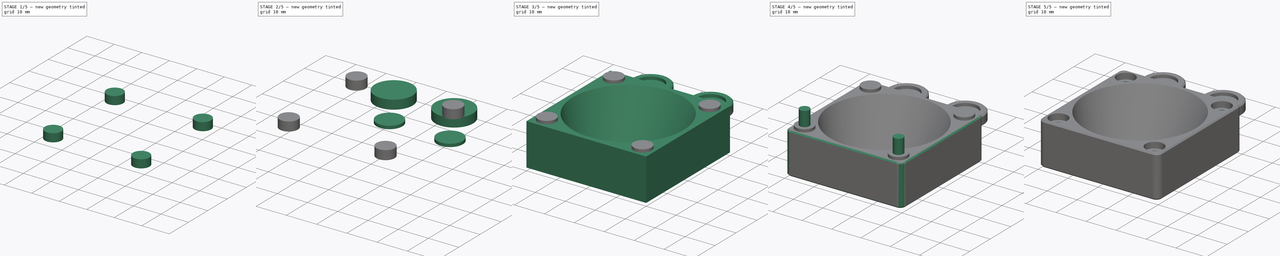
[diagram: build sequence overview — one tinted view per stage of 5, left to right]
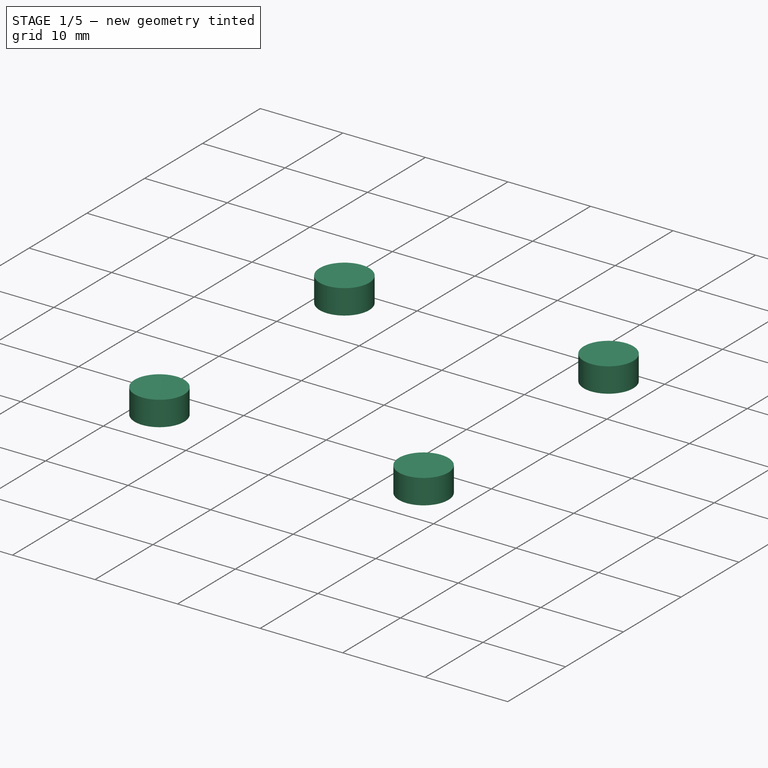
[diagram: stage 1 of 5 — iso view after this stage's code; geometry added in this stage tinted green]
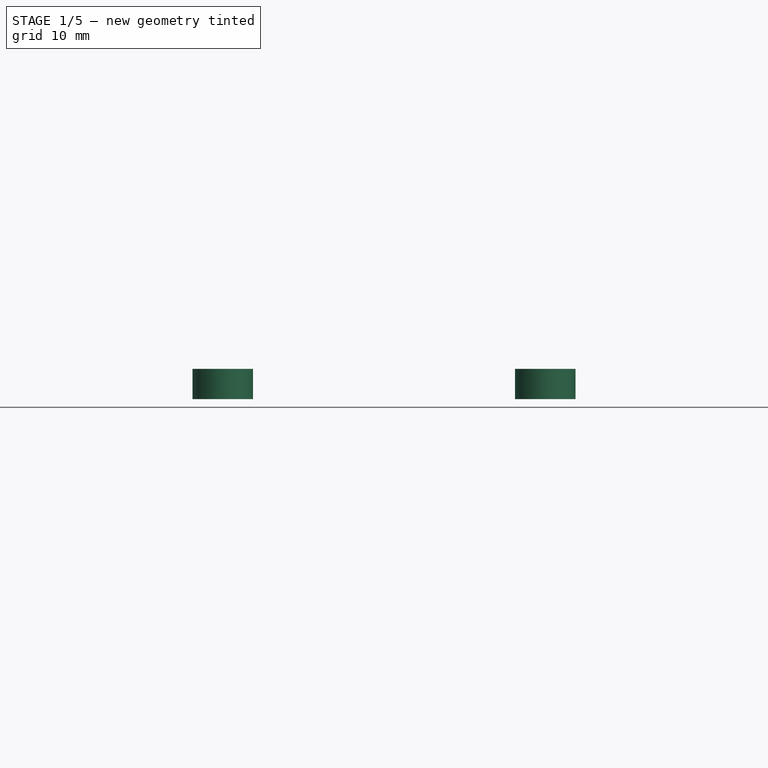
[diagram: stage 1 of 5 — front view after this stage's code; geometry added in this stage tinted green]
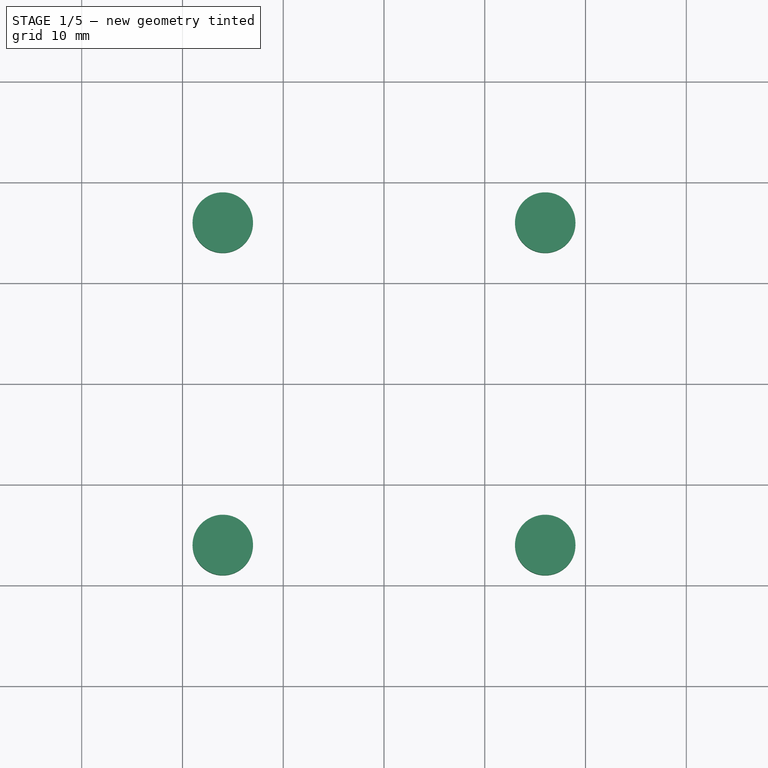
[diagram: stage 1 of 5 — top view after this stage's code; geometry added in this stage tinted green]
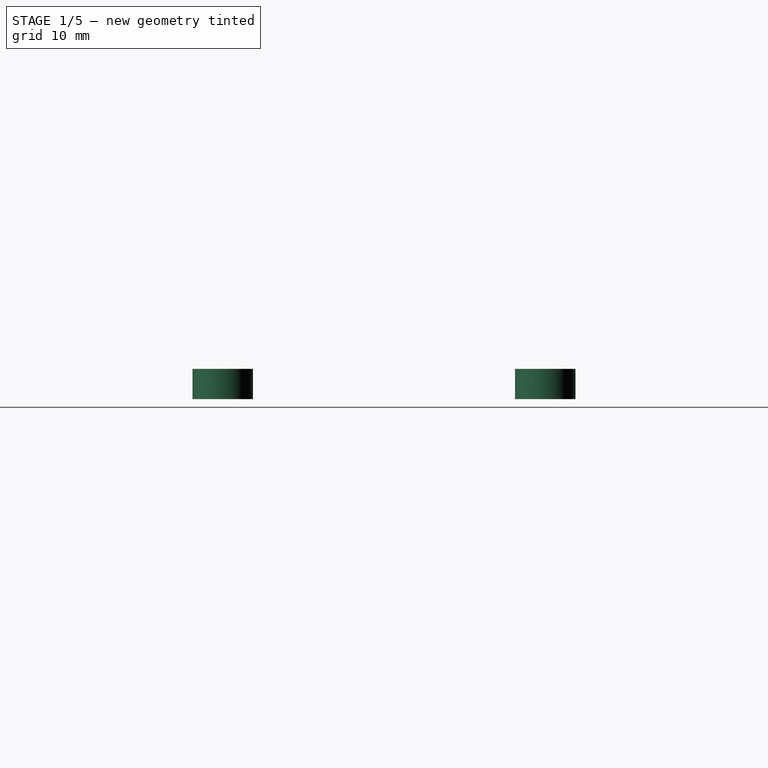
[diagram: stage 1 of 5 — right view after this stage's code; geometry added in this stage tinted green]
FCSTD DOCUMENT  (FreeCAD 0.19R24291 (Git))
Label: dummy-fan
License: Other
LicenseURL: GPL3
objects: Part::Cylinder×12, Part::MultiFuse×5, Part::Cut×4, Part::Feature×2, Sketcher::SketchObject×2, Part::Chamfer×2, Part::Box×1, PartDesign::AdditiveLoft×1, PartDesign::Body×1, Part::Fillet×1
note: 32 computed .brp shape members not serialized (recipe doc carries the construction recipe); baked Part::Feature solids carry a one-line shape summary decoded from their .brp

FEATURE [Part::Cylinder] Cylinder008
  Angle = 360
  AttacherType = Attacher::AttachEngine3D
  Height = 3
  Placement = pos=(-16,16,0) rot=(0,0,1;0rad)
  Radius = 3
FEATURE [Part::Cylinder] Cylinder009
  Angle = 360
  AttacherType = Attacher::AttachEngine3D
  Height = 3
  Placement = pos=(-16,-16,0) rot=(0,0,1;0rad)
  Radius = 3
FEATURE [Part::Cylinder] Cylinder010
  Angle = 360
  AttacherType = Attacher::AttachEngine3D
  Height = 3
  Placement = pos=(16,16,0) rot=(0,0,1;0rad)
  Radius = 3
FEATURE [Part::Cylinder] Cylinder011
  Angle = 360
  AttacherType = Attacher::AttachEngine3D
  Height = 3
  Placement = pos=(16,-16,0) rot=(0,0,1;0rad)
  Radius = 3
FEATURE [Part::MultiFuse] Fusion036012039010005
  Placement = pos=(0,0,12) rot=(0,0,1;0rad)
  Shapes = -> [Cylinder011,Cylinder008,Cylinder009,Cylinder010]
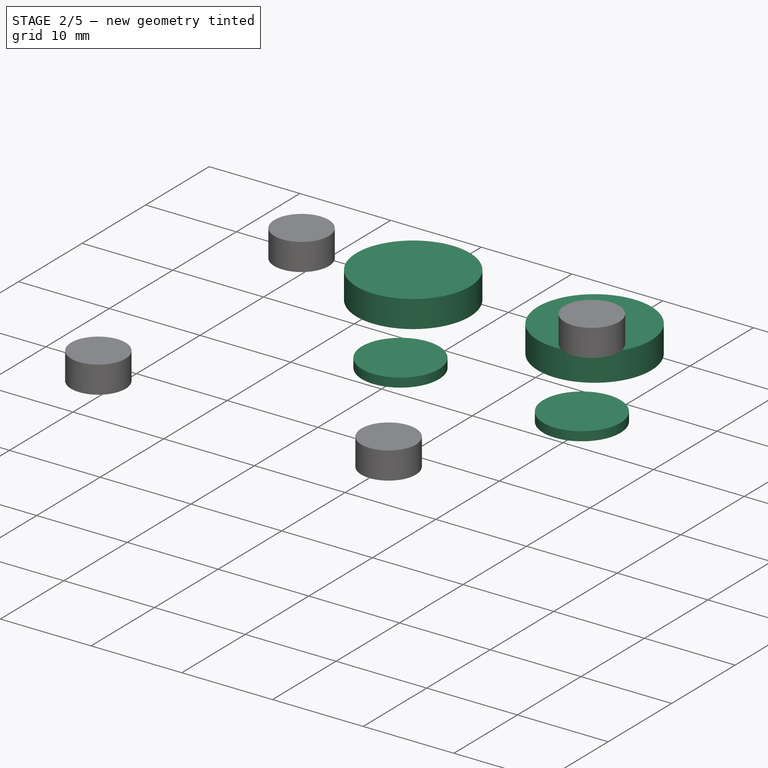
[diagram: stage 2 of 5 — iso view after this stage's code; geometry added in this stage tinted green]
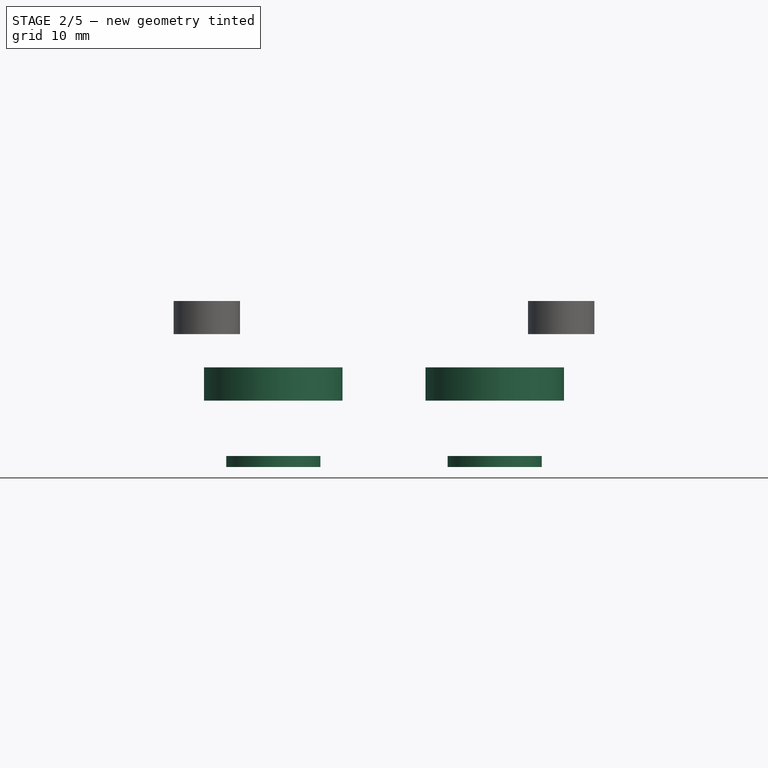
[diagram: stage 2 of 5 — front view after this stage's code; geometry added in this stage tinted green]
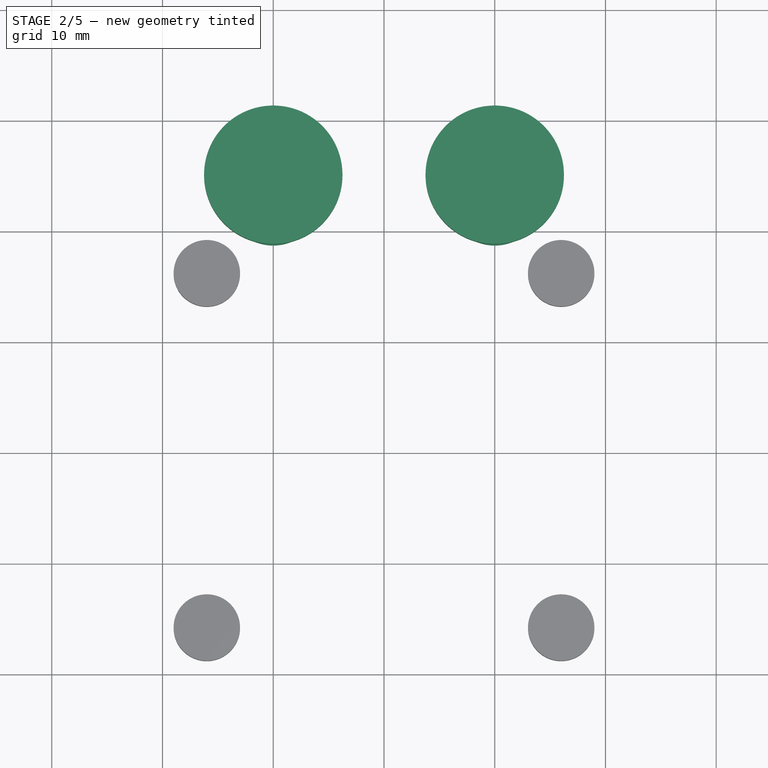
[diagram: stage 2 of 5 — top view after this stage's code; geometry added in this stage tinted green]
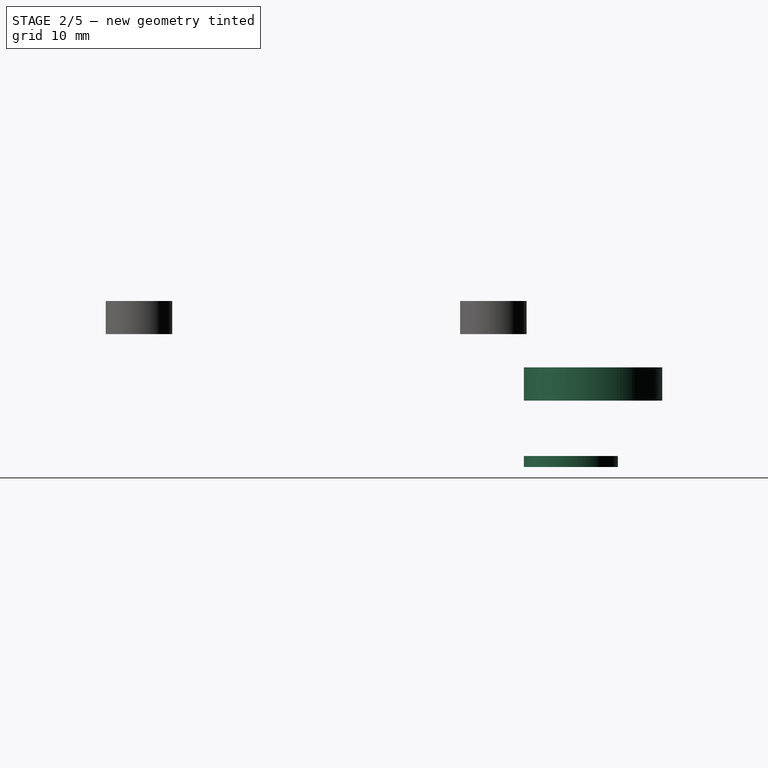
[diagram: stage 2 of 5 — right view after this stage's code; geometry added in this stage tinted green]
FEATURE [Part::Feature] Fusion036012039008  label="_2510-fan-pref"
  Placement = pos=(0.02,-4,26) rot=(1,0,0;3.14159rad)
  shape: bbox 25.76 x 25.8 x 10.5 mm, 132 faces, 2 solids (baked)
FEATURE [Sketcher::SketchObject] Sketch
  FullyConstrained = true
  MapMode = 5
  Support = -> [XY_Plane]
  sketch-geometry (1):
    g0: Circle CenterX=0 CenterY=-3.75 CenterZ=0 NormalX=0 NormalY=0 NormalZ=1 AngleXU=0 Radius=14.25
  constraints (3):
    c: DistanceY(g-1,g0) = -3.75
    c: DistanceX(g0,g-1) = 0
    c: Radius(g0) = 14.25
FEATURE [Sketcher::SketchObject] Sketch001
  AttachmentOffset = pos=(0,0,14) rot=(0,0,1;0rad)
  FullyConstrained = true
  MapMode = 5
  Placement = pos=(0,0,14) rot=(0,0,1;0rad)
  Support = -> [XY_Plane]
  sketch-geometry (1):
    g0: Circle CenterX=0 CenterY=0 CenterZ=0 NormalX=0 NormalY=0 NormalZ=1 AngleXU=0 Radius=18.5
  constraints (3):
    c: DistanceX(g0,g-1) = 0
    c: DistanceY(g-1,g0) = 0
    c: Radius(g0) = 18.5
FEATURE [Part::Cylinder] Cylinder004
  Angle = 360
  AttacherType = Attacher::AttachEngine3D
  Height = 3
  Placement = pos=(10,25,0) rot=(0,0,1;0rad)
  Radius = 6.25
FEATURE [Part::Cylinder] Cylinder006
  Angle = 360
  AttacherType = Attacher::AttachEngine3D
  Height = 1
  Placement = pos=(-10,23,0) rot=(0,0,1;0rad)
  Radius = 4.25
FEATURE [Part::Cylinder] Cylinder007
  Angle = 360
  AttacherType = Attacher::AttachEngine3D
  Height = 1
  Placement = pos=(10,23,0) rot=(0,0,1;0rad)
  Radius = 4.25
FEATURE [Part::Feature] Cut002001  label="short-duct"
  shape: bbox 47.45 x 54.06 x 9 mm, 37 faces (baked)
FEATURE [Part::Cylinder] Cylinder005
  Angle = 360
  AttacherType = Attacher::AttachEngine3D
  Height = 3
  Placement = pos=(-10,25,0) rot=(0,0,1;0rad)
  Radius = 6.25
FEATURE [Part::MultiFuse] Fusion036012039010003
  Placement = pos=(0,0,6) rot=(0,0,1;0rad)
  Shapes = -> [Cylinder004,Cylinder005]
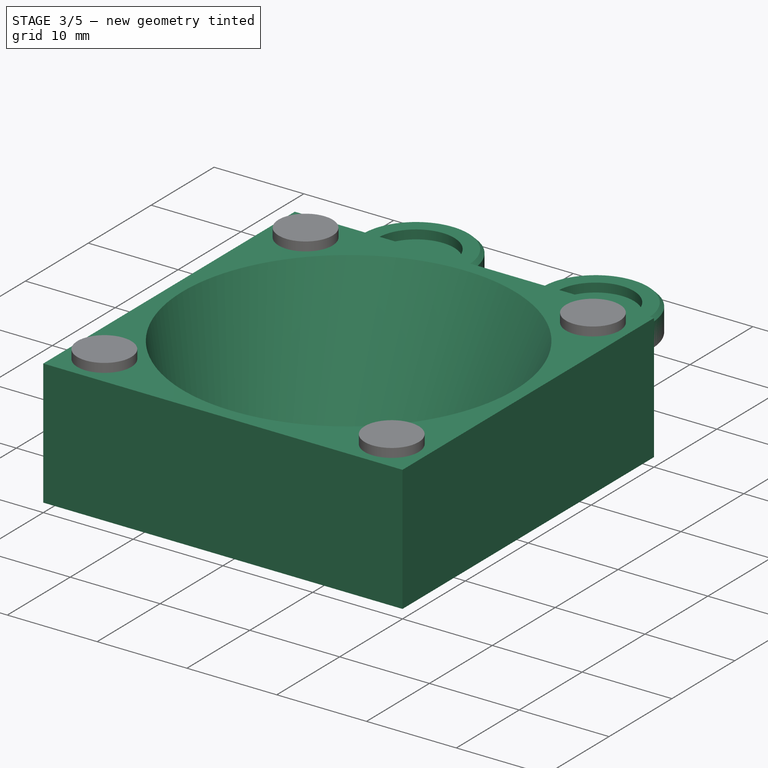
[diagram: stage 3 of 5 — iso view after this stage's code; geometry added in this stage tinted green]
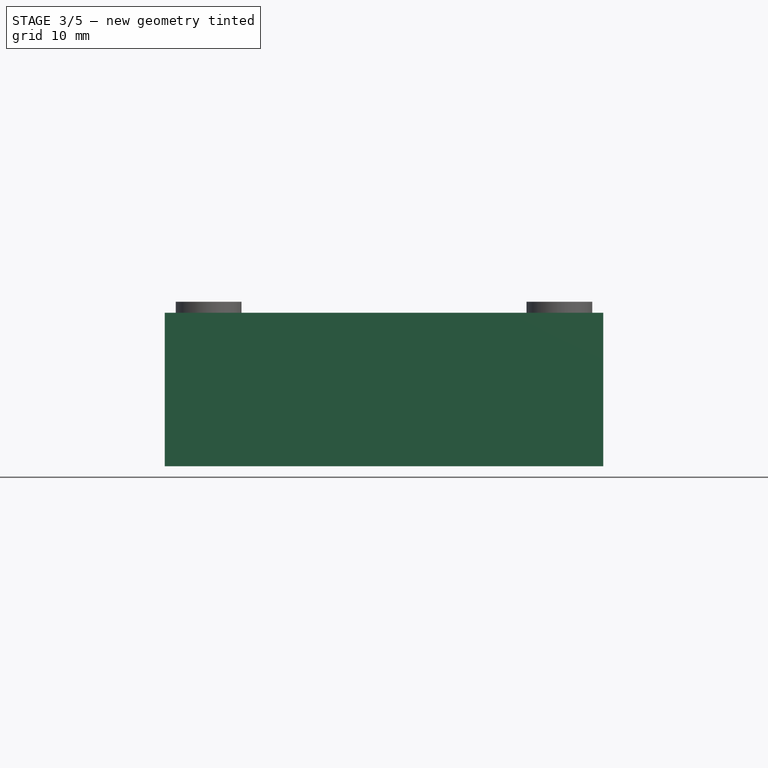
[diagram: stage 3 of 5 — front view after this stage's code; geometry added in this stage tinted green]
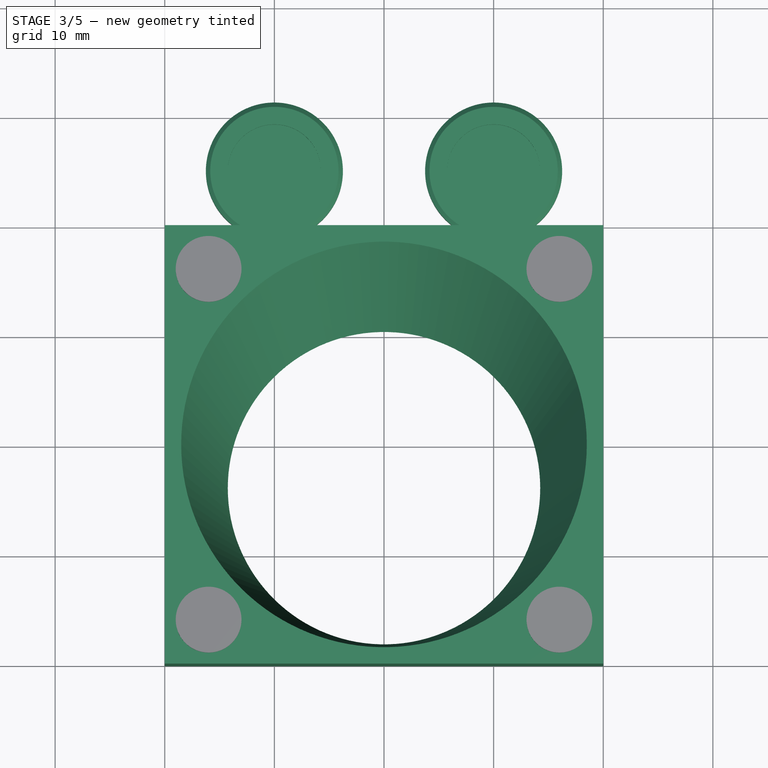
[diagram: stage 3 of 5 — top view after this stage's code; geometry added in this stage tinted green]
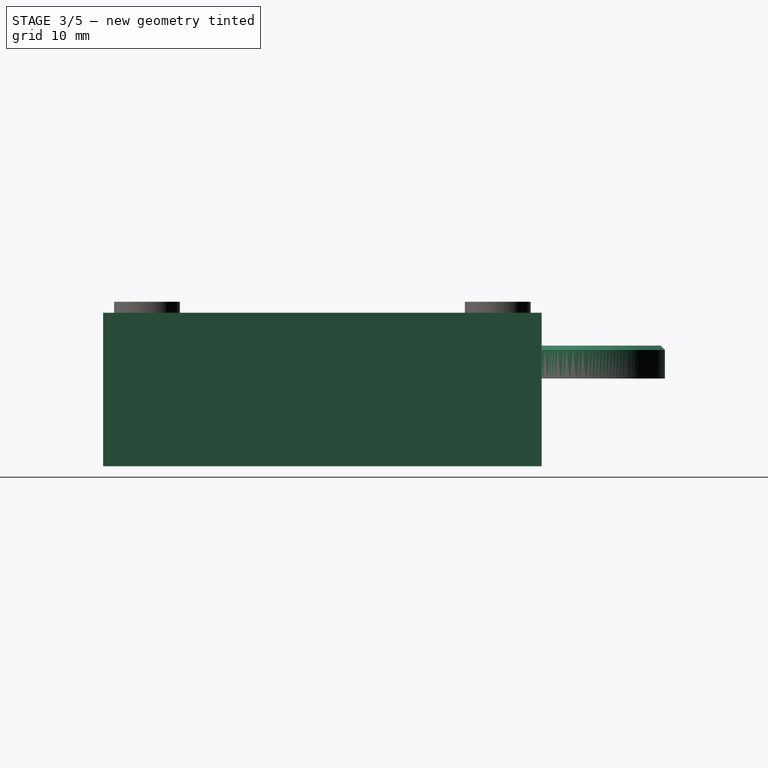
[diagram: stage 3 of 5 — right view after this stage's code; geometry added in this stage tinted green]
FEATURE [Part::Box] Box  label="Cube"
  AttacherType = Attacher::AttachEngine3D
  Height = 14
  Length = 40
  Placement = pos=(-20,-20,0) rot=(0,0,1;0rad)
  Width = 40
FEATURE [Part::MultiFuse] Fusion036012039010002
  Placement = pos=(0,2,8) rot=(0,0,1;0rad)
  Shapes = -> [Cylinder006,Cylinder007]
FEATURE [Part::Cut] Cut002003
  Base = -> Fusion036012039010003
  Placement = pos=(0,0,2) rot=(0,0,1;0rad)
  Tool = -> Fusion036012039010002
FEATURE [PartDesign::AdditiveLoft] AdditiveLoft
  Closed = false
  Profile = -> Sketch
  Ruled = false
  Sections = -> [Sketch001]
FEATURE [PartDesign::Body] Body
  Group = -> [Sketch,Sketch001,AdditiveLoft]
  Origin = -> Origin
  Tip = -> AdditiveLoft
FEATURE [Part::Cut] Cut
  Base = -> Box
  Tool = -> Body
FEATURE [Part::Chamfer] Chamfer001
  Base = -> Cut002003
  Edges = 2 edges r=0.4: [Edge1,Edge7]
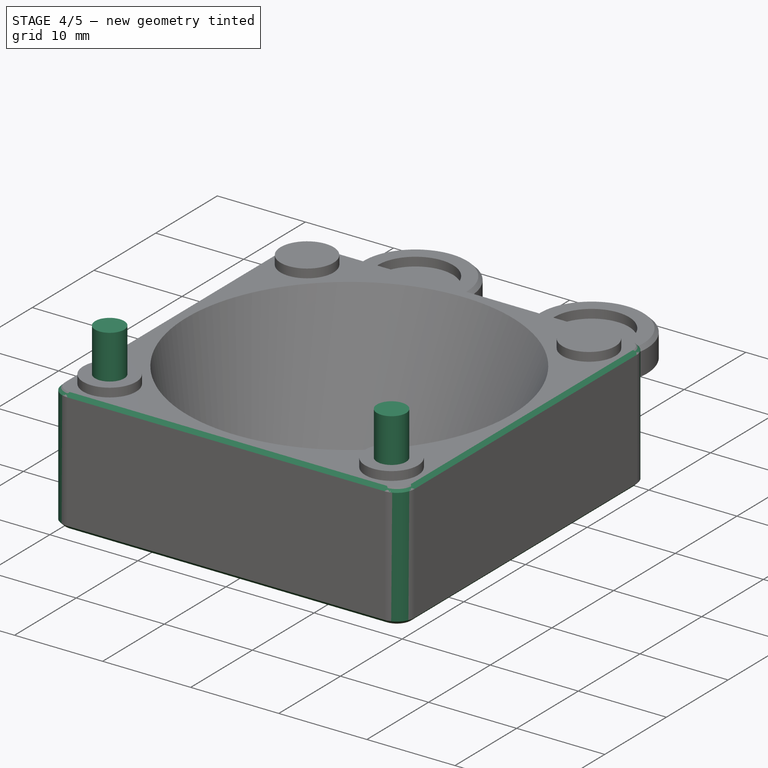
[diagram: stage 4 of 5 — iso view after this stage's code; geometry added in this stage tinted green]
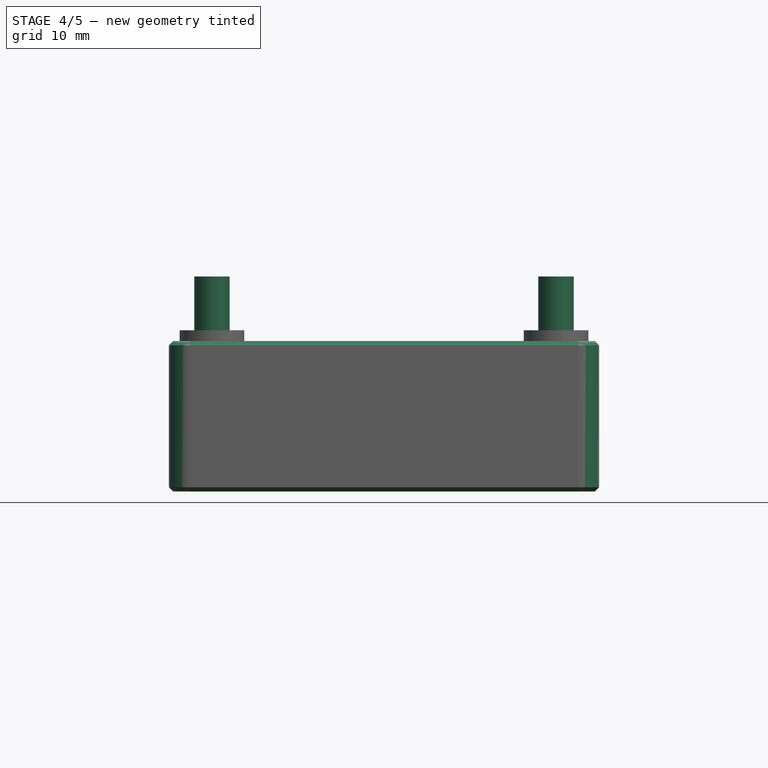
[diagram: stage 4 of 5 — front view after this stage's code; geometry added in this stage tinted green]
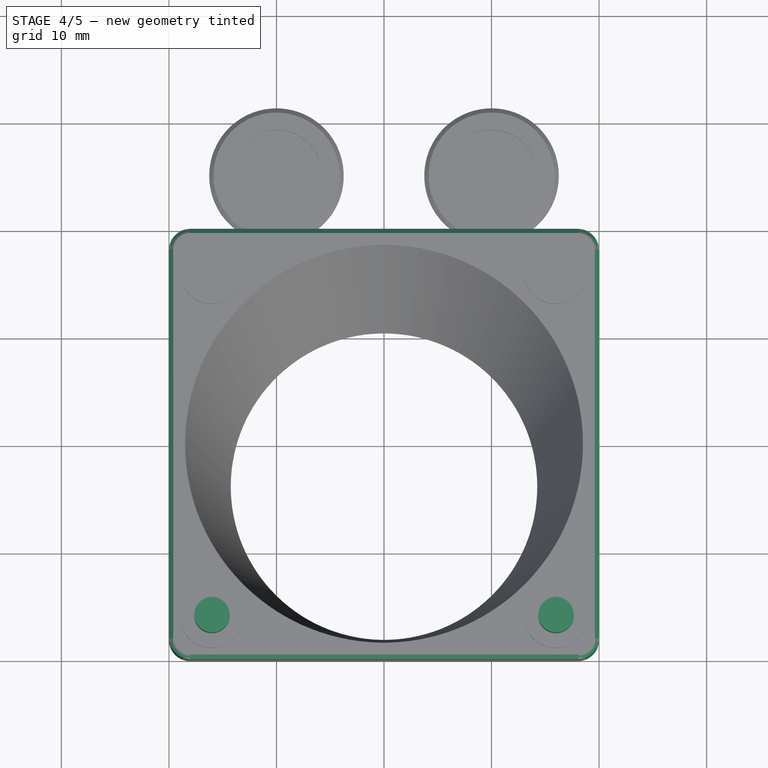
[diagram: stage 4 of 5 — top view after this stage's code; geometry added in this stage tinted green]
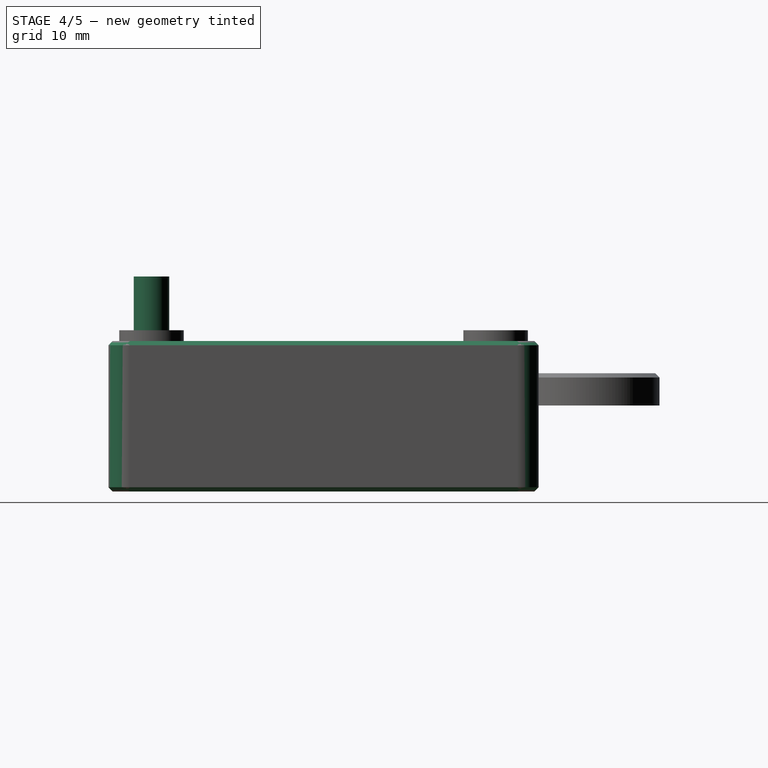
[diagram: stage 4 of 5 — right view after this stage's code; geometry added in this stage tinted green]
FEATURE [Part::Cylinder] Cylinder002
  Angle = 360
  AttacherType = Attacher::AttachEngine3D
  Height = 20
  Placement = pos=(16,-16,0) rot=(0,0,1;0rad)
  Radius = 1.65
FEATURE [Part::Cylinder] Cylinder003
  Angle = 360
  AttacherType = Attacher::AttachEngine3D
  Height = 20
  Placement = pos=(-16,-16,0) rot=(0,0,1;0rad)
  Radius = 1.65
FEATURE [Part::Fillet] Fillet
  Base = -> Cut
  Edges = 4 edges r=2: [Edge1,Edge3,Edge6,Edge12]
FEATURE [Part::Chamfer] Chamfer
  Base = -> Fillet
  Edges = 16 edges r=0.4: [Edge1,Edge3,Edge5,Edge6,Edge7,Edge8,Edge9,Edge10,Edge11,Edge13,Edge15,Edge17,Edge18,Edge19,Edge20,Edge21]
FEATURE [Part::MultiFuse] Fusion036012039010004
  Shapes = -> [Chamfer001,Chamfer]
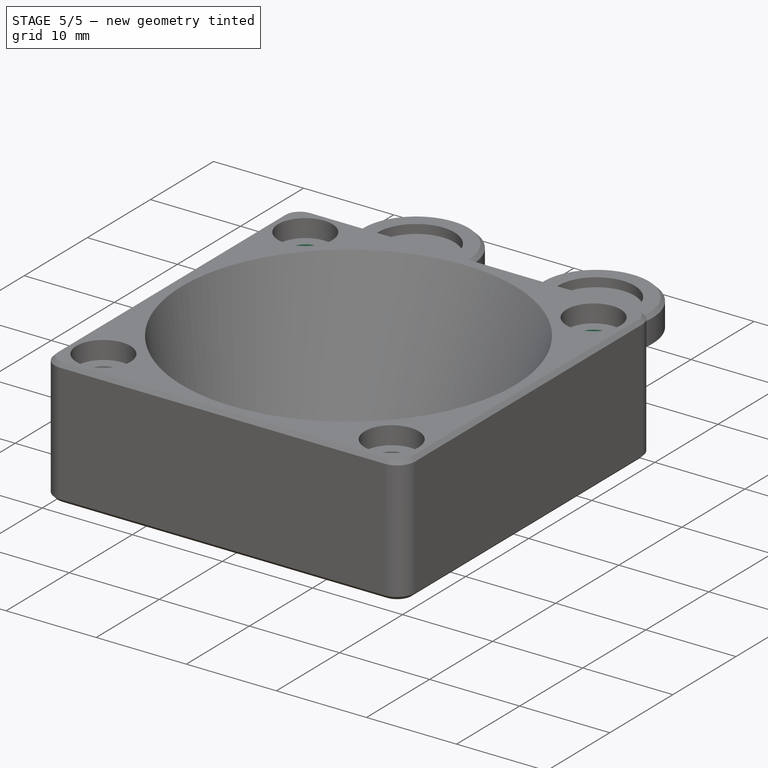
[diagram: stage 5 of 5 — iso view after this stage's code; geometry added in this stage tinted green]
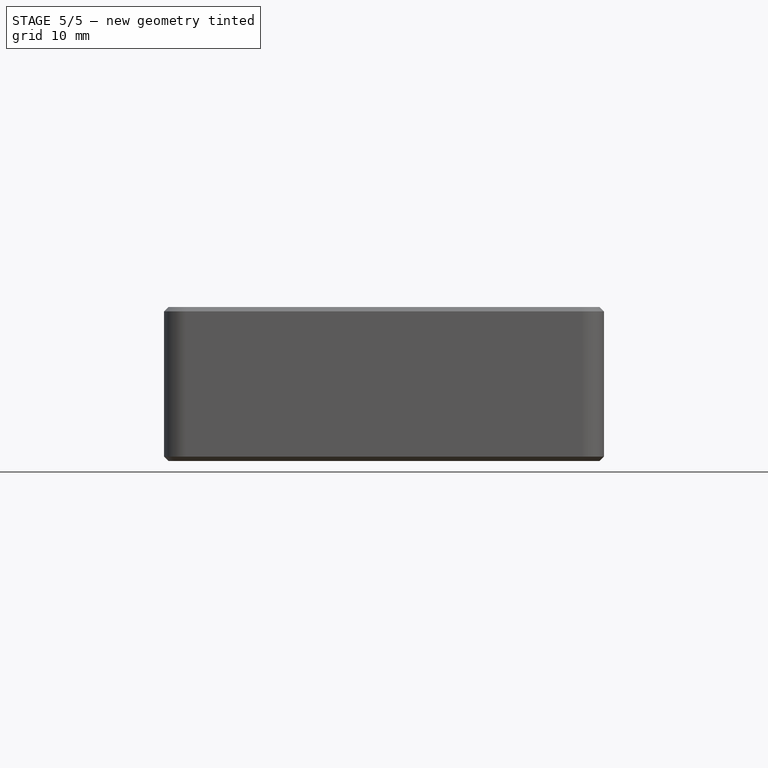
[diagram: stage 5 of 5 — front view after this stage's code; geometry added in this stage tinted green]
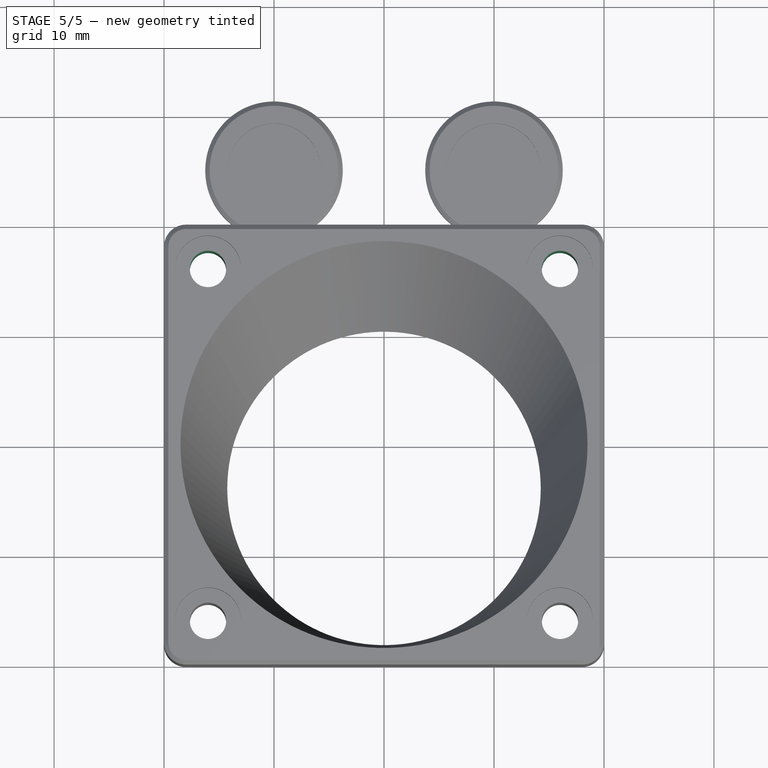
[diagram: stage 5 of 5 — top view after this stage's code; geometry added in this stage tinted green]
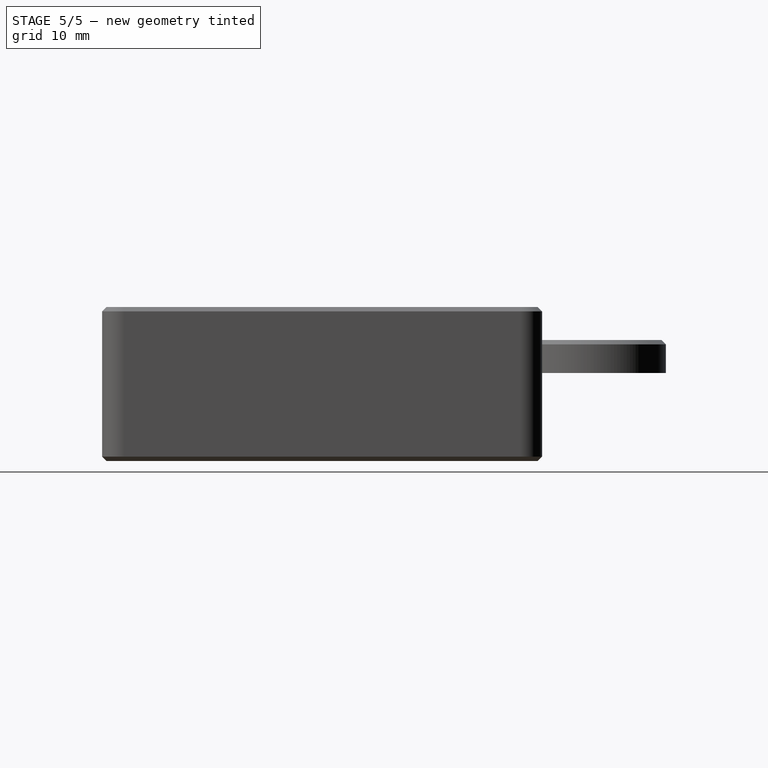
[diagram: stage 5 of 5 — right view after this stage's code; geometry added in this stage tinted green]
FEATURE [Part::Cylinder] Cylinder
  Angle = 360
  AttacherType = Attacher::AttachEngine3D
  Height = 20
  Placement = pos=(16,16,0) rot=(0,0,1;0rad)
  Radius = 1.65
FEATURE [Part::Cylinder] Cylinder001
  Angle = 360
  AttacherType = Attacher::AttachEngine3D
  Height = 20
  Placement = pos=(-16,16,0) rot=(0,0,1;0rad)
  Radius = 1.65
FEATURE [Part::MultiFuse] Fusion
  Shapes = -> [Cylinder003,Cylinder,Cylinder002,Cylinder001]
FEATURE [Part::Cut] Cut002004
  Base = -> Fusion036012039010004
  Tool = -> Fusion
FEATURE [Part::Cut] Cut002005
  Base = -> Cut002004
  Tool = -> Fusion036012039010005
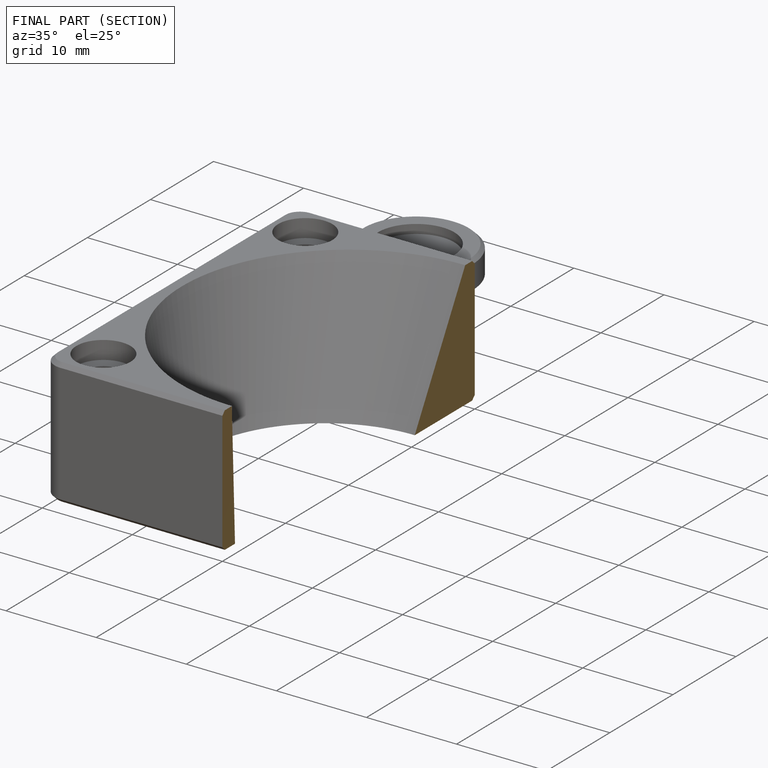
[diagram: finished part — half-section view (interior)]
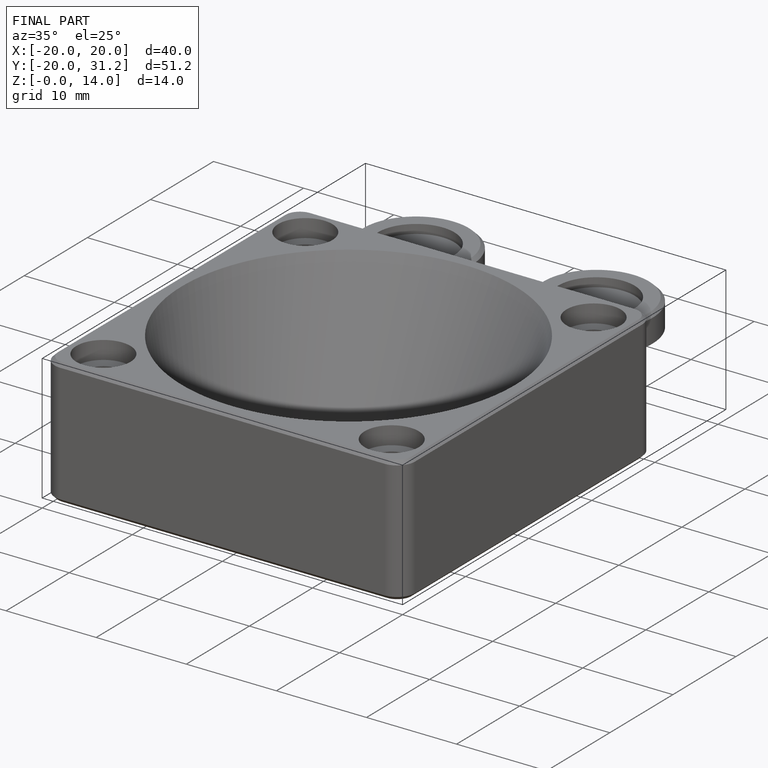
[diagram: finished part — iso view with bounding-box wireframe]
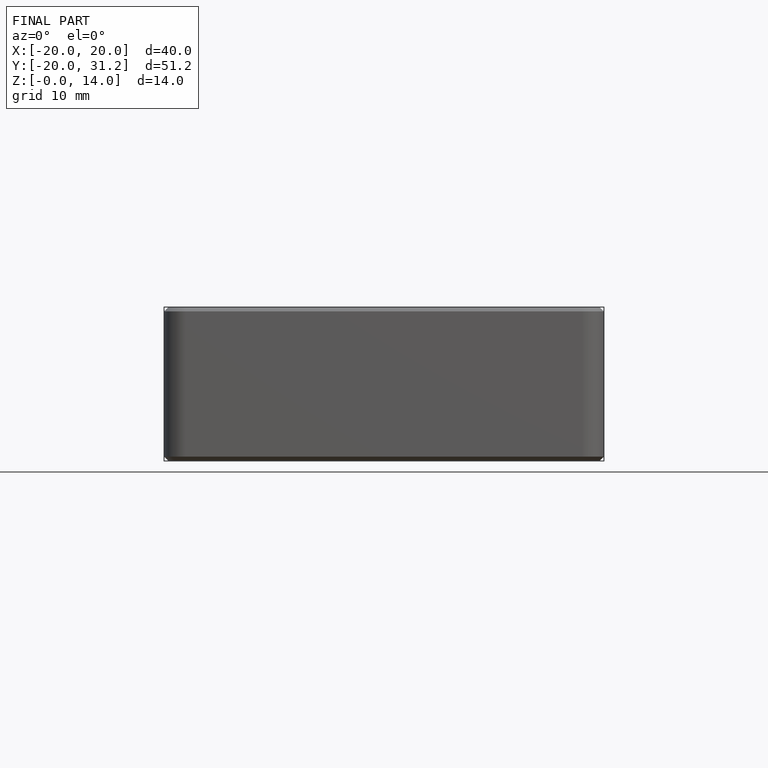
[diagram: finished part — front view with bounding-box wireframe]
